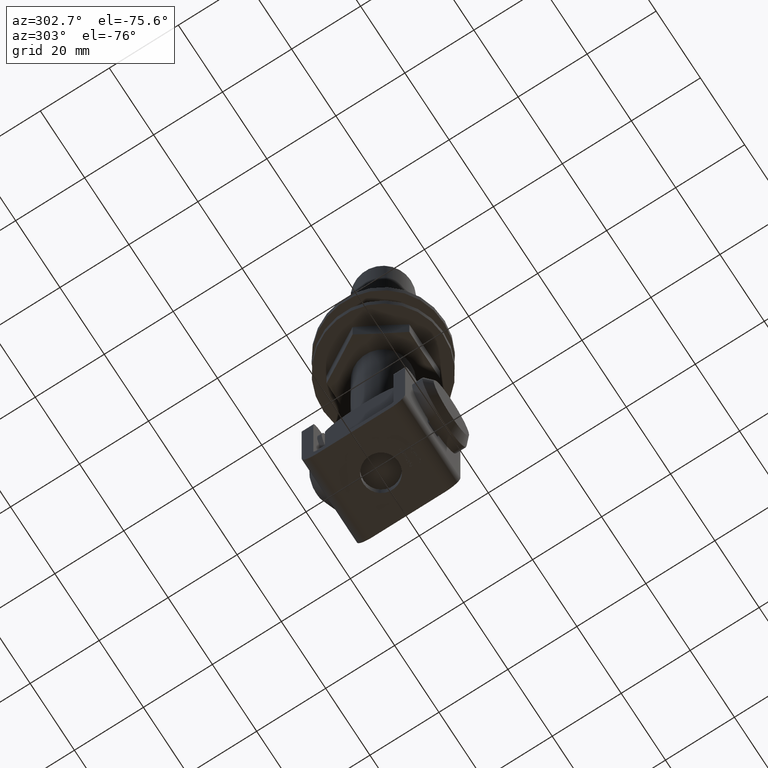
[diagram: clean part render]
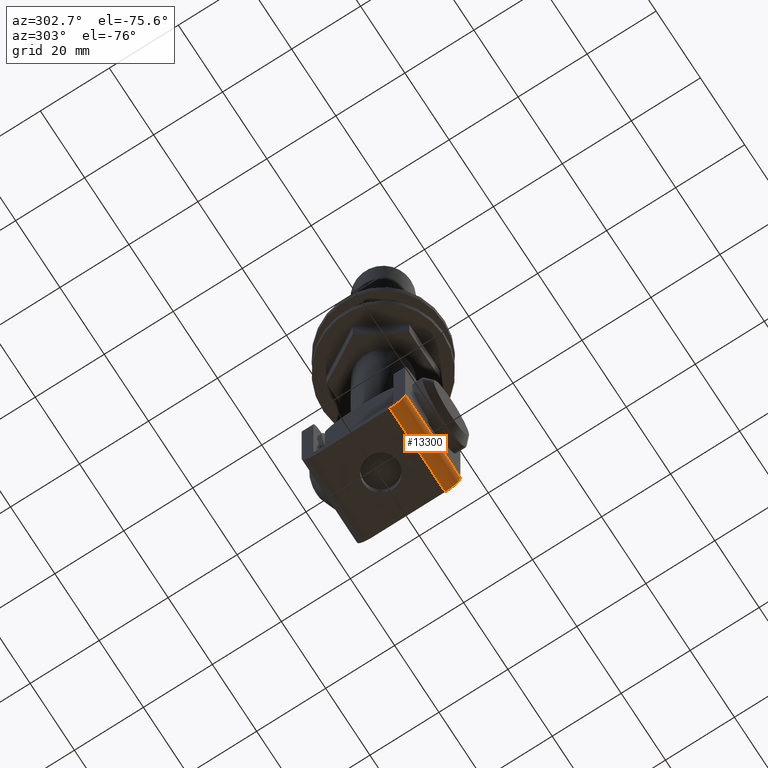
[diagram: same view with one face highlighted and labeled with its STEP entity id]
A machine part, auxiliary view. The second image highlights one B-rep face of the part: STEP entity #13300.
In plain terms, the highlighted cylindrical surface (edge-blend (fillet) strip) has radius 4.4 mm, axis along (-1, 0, 0).
Its self-contained STEP definition (entity closure, byte-faithful):
#308 = VERTEX_POINT ( 'NONE', #8622 ) ;
#1181 = CIRCLE ( 'NONE', #11912, 4.399999999999999467 ) ;
#1906 = CIRCLE ( 'NONE', #8625, 4.399999999999999467 ) ;
#2096 = ORIENTED_EDGE ( 'NONE', *, *, #11691, .F. ) ;
#2236 = DIRECTION ( 'NONE',  ( -1.000000000000000000, 0.000000000000000000, 0.000000000000000000 ) ) ;
#2407 = EDGE_LOOP ( 'NONE', ( #14496, #2096, #8205, #11641 ) ) ;
#2465 = CARTESIAN_POINT ( 'NONE',  ( 12.50000000000000000, -10.59999999999999787, -8.988456106358317538E-16 ) ) ;
#2929 = VERTEX_POINT ( 'NONE', #8767 ) ;
#3443 = DIRECTION ( 'NONE',  ( 0.000000000000000000, 0.000000000000000000, 1.000000000000000000 ) ) ;
#3467 = CARTESIAN_POINT ( 'NONE',  ( 12.50000000000000000, -10.59999999999999964, 4.399999999999999467 ) ) ;
#3854 = EDGE_CURVE ( 'NONE', #2929, #308, #1906, .T. ) ;
#4313 = DIRECTION ( 'NONE',  ( 1.000000000000000000, -0.000000000000000000, -0.000000000000000000 ) ) ;
#4669 = FACE_OUTER_BOUND ( 'NONE', #2407, .T. ) ;
#4898 = DIRECTION ( 'NONE',  ( 0.000000000000000000, 0.000000000000000000, 1.000000000000000000 ) ) ;
#5915 = VECTOR ( 'NONE', #9995, 1000.000000000000000 ) ;
#7044 = CARTESIAN_POINT ( 'NONE',  ( -12.50000000000000000, -10.59999999999999964, 4.399999999999999467 ) ) ;
#7448 = VERTEX_POINT ( 'NONE', #15578 ) ;
#8205 = ORIENTED_EDGE ( 'NONE', *, *, #11126, .F. ) ;
#8622 = CARTESIAN_POINT ( 'NONE',  ( 12.50000000000000000, -10.59999999999999787, -8.988456106358301761E-16 ) ) ;
#8625 = AXIS2_PLACEMENT_3D ( 'NONE', #3467, #4313, #3443 ) ;
#8767 = CARTESIAN_POINT ( 'NONE',  ( 12.50000000000000000, -15.00000000000000000, 4.399999999999998579 ) ) ;
#8896 = EDGE_CURVE ( 'NONE', #308, #9316, #14763, .T. ) ;
#9042 = DIRECTION ( 'NONE',  ( -1.000000000000000000, 0.000000000000000000, 0.000000000000000000 ) ) ;
#9192 = CYLINDRICAL_SURFACE ( 'NONE', #13267, 4.399999999999999467 ) ;
#9316 = VERTEX_POINT ( 'NONE', #10428 ) ;
#9995 = DIRECTION ( 'NONE',  ( 1.000000000000000000, -0.000000000000000000, -0.000000000000000000 ) ) ;
#10426 = VECTOR ( 'NONE', #9042, 1000.000000000000000 ) ;
#10428 = CARTESIAN_POINT ( 'NONE',  ( -12.50000000000000000, -10.59999999999999787, -8.988456106358301761E-16 ) ) ;
#10925 = DIRECTION ( 'NONE',  ( -1.000000000000000000, 0.000000000000000000, 0.000000000000000000 ) ) ;
#11126 = EDGE_CURVE ( 'NONE', #9316, #7448, #1181, .T. ) ;
#11641 = ORIENTED_EDGE ( 'NONE', *, *, #8896, .F. ) ;
#11691 = EDGE_CURVE ( 'NONE', #7448, #2929, #16352, .T. ) ;
#11912 = AXIS2_PLACEMENT_3D ( 'NONE', #7044, #10925, #12419 ) ;
#12419 = DIRECTION ( 'NONE',  ( 0.000000000000000000, 0.000000000000000000, 1.000000000000000000 ) ) ;
#12758 = CARTESIAN_POINT ( 'NONE',  ( 12.50000000000000000, -10.59999999999999964, 4.399999999999999467 ) ) ;
#13267 = AXIS2_PLACEMENT_3D ( 'NONE', #12758, #2236, #4898 ) ;
#13300 = ADVANCED_FACE ( 'NONE', ( #4669 ), #9192, .T. ) ;
#14496 = ORIENTED_EDGE ( 'NONE', *, *, #3854, .F. ) ;
#14763 = LINE ( 'NONE', #2465, #10426 ) ;
#15578 = CARTESIAN_POINT ( 'NONE',  ( -12.50000000000000000, -15.00000000000000000, 4.399999999999998579 ) ) ;
#16352 = LINE ( 'NONE', #16683, #5915 ) ;
#16683 = CARTESIAN_POINT ( 'NONE',  ( 12.50000000000000000, -15.00000000000000000, 4.399999999999998579 ) ) ;